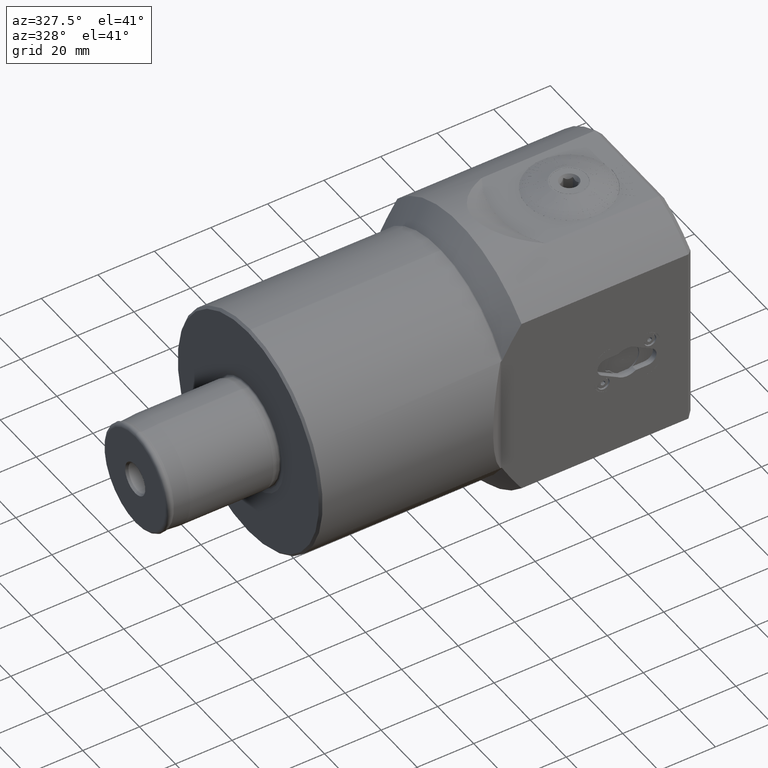
[diagram: clean part render]
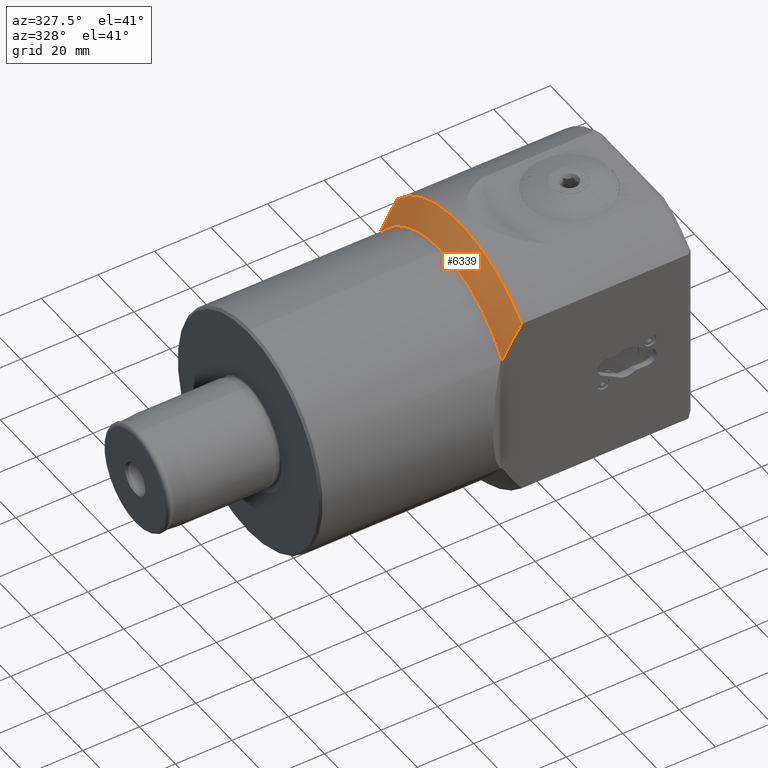
[diagram: same view with one face highlighted and labeled with its STEP entity id]
A machine part, auxiliary view. The second image highlights one B-rep face of the part: STEP entity #6339.
In plain terms, the highlighted conical surface has half-angle 45 deg.
Its self-contained STEP definition (entity closure, byte-faithful):
#114 = CARTESIAN_POINT ( 'NONE',  ( -61.00000000000000000, -34.00000000000001400, 32.44996147917592600 ) ) ;
#236 = CARTESIAN_POINT ( 'NONE',  ( -67.88284271247461300, -34.00000000000001400, 21.29286990595801400 ) ) ;
#408 = ORIENTED_EDGE ( 'NONE', *, *, #28650, .F. ) ;
#1087 = ORIENTED_EDGE ( 'NONE', *, *, #19571, .T. ) ;
#1306 = AXIS2_PLACEMENT_3D ( 'NONE', #14189, #33118, #16900 ) ;
#1309 = VERTEX_POINT ( 'NONE', #114 ) ;
#2166 = CIRCLE ( 'NONE', #20328, 40.11715728752538700 ) ;
#2857 = EDGE_CURVE ( 'NONE', #1309, #6229, #14439, .T. ) ;
#3304 = CARTESIAN_POINT ( 'NONE',  ( -61.00000000000000000, 35.00000000000004300, 31.36877428271615300 ) ) ;
#3372 = EDGE_CURVE ( 'NONE', #19730, #32895, #2166, .T. ) ;
#5241 = CARTESIAN_POINT ( 'NONE',  ( -62.23207876059910900, -34.00000000000002800, 30.64598146475345800 ) ) ;
#5833 = DIRECTION ( 'NONE',  ( 0.0000000000000000000, 0.0000000000000000000, 1.000000000000000000 ) ) ;
#6229 = VERTEX_POINT ( 'NONE', #6595 ) ;
#6339 = ADVANCED_FACE ( 'NONE', ( #29527 ), #18909, .T. ) ;
#6595 = CARTESIAN_POINT ( 'NONE',  ( -61.00000000000000000, 35.00000000000004300, 31.36877428271615300 ) ) ;
#7052 = DIRECTION ( 'NONE',  ( 0.0000000000000000000, 0.0000000000000000000, -1.000000000000000000 ) ) ;
#8211 = CARTESIAN_POINT ( 'NONE',  ( -67.88284271247461300, -3.469446951953614200E-014, 0.0000000000000000000 ) ) ;
#8295 = CARTESIAN_POINT ( 'NONE',  ( -65.76126830777322100, -34.00000000000001400, 25.10445383073102800 ) ) ;
#8488 = CARTESIAN_POINT ( 'NONE',  ( -63.47135426212556600, 35.00000000000000000, 27.57334307531783000 ) ) ;
#10000 = CARTESIAN_POINT ( 'NONE',  ( -61.00000000000000000, -3.469446951953614200E-014, 0.0000000000000000000 ) ) ;
#10727 = DIRECTION ( 'NONE',  ( 0.0000000000000000000, 0.0000000000000000000, 1.000000000000000000 ) ) ;
#10782 = CARTESIAN_POINT ( 'NONE',  ( -63.43562422722759200, -34.00000000000002100, 28.81765350230438100 ) ) ;
#11281 = B_SPLINE_CURVE_WITH_KNOTS ( 'NONE', 3,
 ( #3304, #30361, #8488, #22090, #27640, #32748 ),
 .UNSPECIFIED., .F., .F.,
 ( 4, 2, 4 ),
 ( 0.08714372779061727000, 0.09395984604502379000, 0.1007759642994303100 ),
 .UNSPECIFIED. ) ;
#12381 = DIRECTION ( 'NONE',  ( 1.000000000000000000, 0.0000000000000000000, 0.0000000000000000000 ) ) ;
#13043 = EDGE_LOOP ( 'NONE', ( #21703, #1087, #408, #29101, #27218 ) ) ;
#13082 = VERTEX_POINT ( 'NONE', #25075 ) ;
#13095 = DIRECTION ( 'NONE',  ( -1.000000000000000000, -0.0000000000000000000, -0.0000000000000000000 ) ) ;
#13396 = CARTESIAN_POINT ( 'NONE',  ( -66.86120705136778500, -34.00000000000000700, 23.21769820238690200 ) ) ;
#14189 = CARTESIAN_POINT ( 'NONE',  ( -61.00000000000000000, -3.469446951953614200E-014, 0.0000000000000000000 ) ) ;
#14439 = CIRCLE ( 'NONE', #1306, 47.00000000000000700 ) ;
#15451 = AXIS2_PLACEMENT_3D ( 'NONE', #10000, #12381, #7052 ) ;
#15700 = EDGE_CURVE ( 'NONE', #19730, #1309, #23702, .T. ) ;
#16457 = CARTESIAN_POINT ( 'NONE',  ( -61.62026604599013500, -34.00000000000000700, 31.55157815812808400 ) ) ;
#16900 = DIRECTION ( 'NONE',  ( 0.0000000000000000000, 0.0000000000000000000, 1.000000000000000000 ) ) ;
#18909 = CONICAL_SURFACE ( 'NONE', #15451, 47.00000000000000700, 0.7853981633974492800 ) ;
#19156 = CARTESIAN_POINT ( 'NONE',  ( -61.00000000000000000, -34.00000000000001400, 32.44996147917592600 ) ) ;
#19571 = EDGE_CURVE ( 'NONE', #6229, #13082, #11281, .T. ) ;
#19730 = VERTEX_POINT ( 'NONE', #27872 ) ;
#20328 = AXIS2_PLACEMENT_3D ( 'NONE', #8211, #30083, #5833 ) ;
#20748 = CIRCLE ( 'NONE', #26439, 40.11715728752538700 ) ;
#21411 = CARTESIAN_POINT ( 'NONE',  ( -64.02790636821109200, -34.00000000000001400, 27.89401020211433400 ) ) ;
#21703 = ORIENTED_EDGE ( 'NONE', *, *, #2857, .T. ) ;
#22090 = CARTESIAN_POINT ( 'NONE',  ( -65.78086504451008000, 35.00000000000000000, 23.66314251087381800 ) ) ;
#23702 = B_SPLINE_CURVE_WITH_KNOTS ( 'NONE', 3,
 ( #236, #13396, #8295, #21411, #10782, #5241, #16457, #19156 ),
 .UNSPECIFIED., .F., .F.,
 ( 4, 2, 2, 4 ),
 ( 0.1439173957843562800, 0.1503942312344143900, 0.1536326489594434200, 0.1568710666844724800 ),
 .UNSPECIFIED. ) ;
#25075 = CARTESIAN_POINT ( 'NONE',  ( -67.88284271247461300, 35.00000000000000000, 19.60577233449497900 ) ) ;
#26439 = AXIS2_PLACEMENT_3D ( 'NONE', #35001, #13095, #10727 ) ;
#26824 = CARTESIAN_POINT ( 'NONE',  ( -67.88284271247461300, -3.469446951953614200E-014, 40.11715728752539400 ) ) ;
#27218 = ORIENTED_EDGE ( 'NONE', *, *, #15700, .T. ) ;
#27640 = CARTESIAN_POINT ( 'NONE',  ( -66.87607325443275400, 35.00000000000000000, 21.66581506127299100 ) ) ;
#27872 = CARTESIAN_POINT ( 'NONE',  ( -67.88284271247461300, -34.00000000000001400, 21.29286990595801400 ) ) ;
#28650 = EDGE_CURVE ( 'NONE', #32895, #13082, #20748, .T. ) ;
#29101 = ORIENTED_EDGE ( 'NONE', *, *, #3372, .F. ) ;
#29527 = FACE_OUTER_BOUND ( 'NONE', #13043, .T. ) ;
#30083 = DIRECTION ( 'NONE',  ( -1.000000000000000000, -0.0000000000000000000, -0.0000000000000000000 ) ) ;
#30361 = CARTESIAN_POINT ( 'NONE',  ( -62.25664892239213800, 35.00000000000000700, 29.48593057259477800 ) ) ;
#32748 = CARTESIAN_POINT ( 'NONE',  ( -67.88284271247461300, 35.00000000000000000, 19.60577233449497900 ) ) ;
#32895 = VERTEX_POINT ( 'NONE', #26824 ) ;
#33118 = DIRECTION ( 'NONE',  ( -1.000000000000000000, -0.0000000000000000000, -0.0000000000000000000 ) ) ;
#35001 = CARTESIAN_POINT ( 'NONE',  ( -67.88284271247461300, -3.469446951953614200E-014, 0.0000000000000000000 ) ) ;